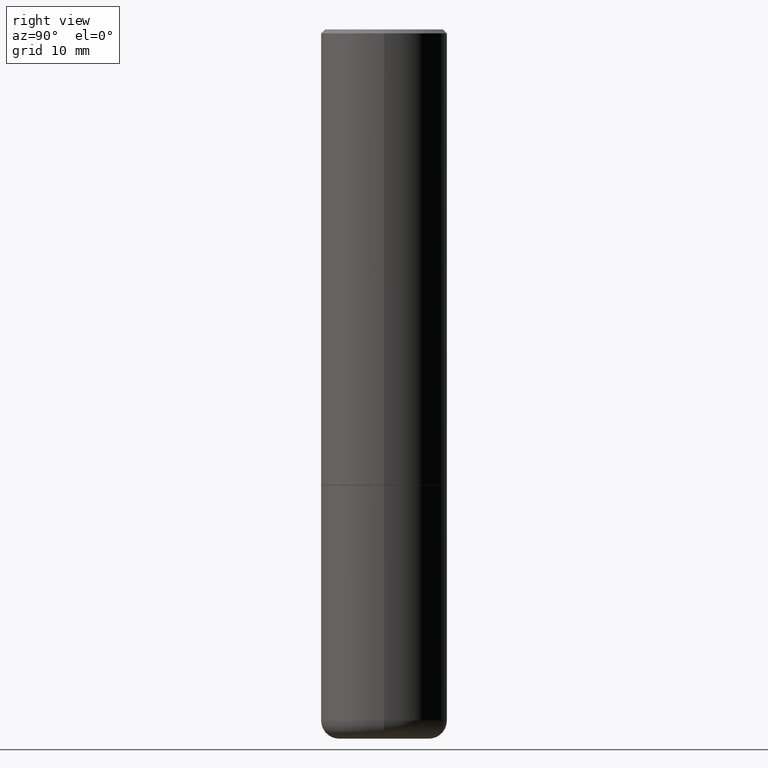
[diagram: clean part render]
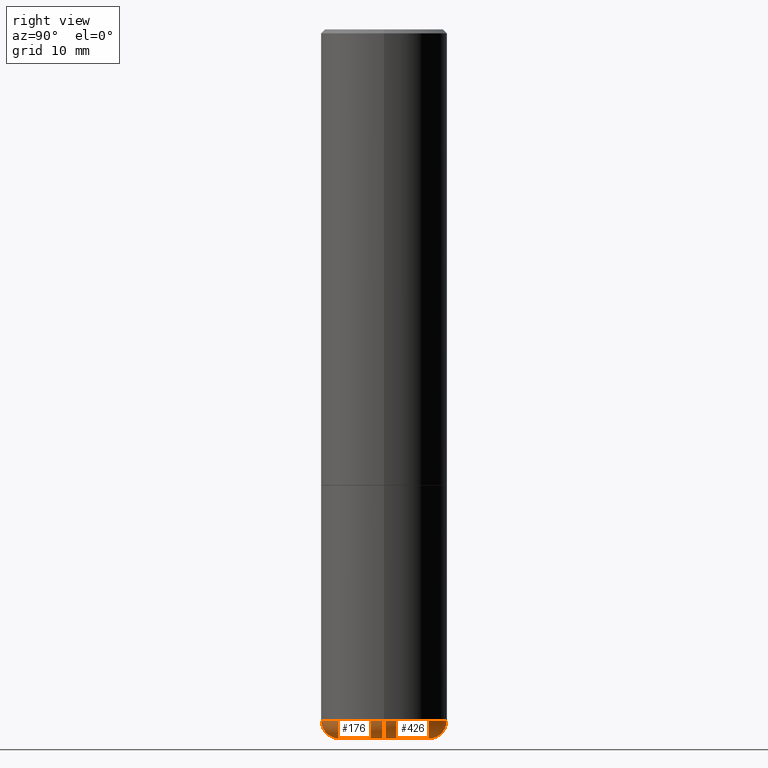
[diagram: same view with one multi-face feature highlighted, each face labeled with its STEP entity id]
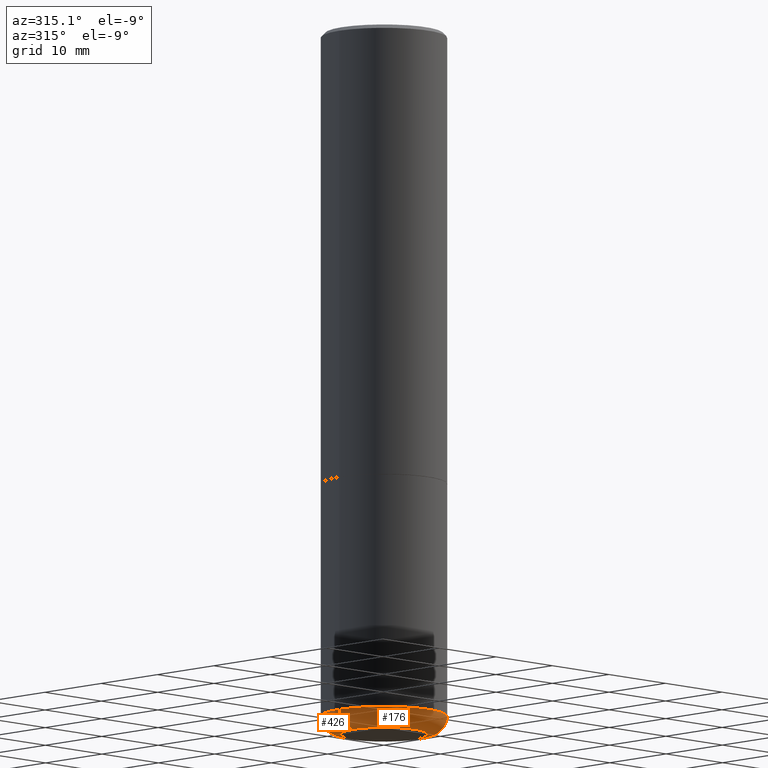
[diagram: same view with one multi-face feature highlighted, each face labeled with its STEP entity id]
A machine part, right view. The highlighted faces form ONE feature: a constant-radius fillet chain: 2 tangent blend faces with common blend radius 2.286 mm. The faces share edges in the B-rep.
A second angle (auxiliary view) of the same feature is appended — it is thin or edge-on in the first view.
Their STEP definitions:
[1] entity #176 (Torus):
#6 = CIRCLE ( 'NONE', #253, 0.3125000000000002776 ) ;
#12 = VERTEX_POINT ( 'NONE', #175 ) ;
#13 = ORIENTED_EDGE ( 'NONE', *, *, #340, .T. ) ;
#15 = EDGE_CURVE ( 'NONE', #411, #12, #291, .T. ) ;
#67 = ORIENTED_EDGE ( 'NONE', *, *, #84, .F. ) ;
#69 = DIRECTION ( 'NONE',  ( 1.000000000000000000, -6.982962677686269077E-15, 4.883557194083113462E-29 ) ) ;
#80 = CARTESIAN_POINT ( 'NONE',  ( 8.339350257792001869E-29, -1.190638201129981839E-14, -3.410123341872087543 ) ) ;
#82 = VERTEX_POINT ( 'NONE', #381 ) ;
#84 = EDGE_CURVE ( 'NONE', #12, #82, #6, .T. ) ;
#96 = FACE_OUTER_BOUND ( 'NONE', #373, .T. ) ;
#110 = ORIENTED_EDGE ( 'NONE', *, *, #289, .T. ) ;
#146 = CARTESIAN_POINT ( 'NONE',  ( -0.2177897639381356776, -1.017931565055450838E-14, -3.500000000000000000 ) ) ;
#159 = DIRECTION ( 'NONE',  ( -2.445468806185136597E-29, 3.491481338843145583E-15, 1.000000000000000000 ) ) ;
#160 = DIRECTION ( 'NONE',  ( -2.445468806185136597E-29, 3.491481338843145583E-15, 1.000000000000000000 ) ) ;
#175 = CARTESIAN_POINT ( 'NONE',  ( -0.3125000000000002776, -7.660661462598130604E-15, -3.410123341872087543 ) ) ;
#176 = ADVANCED_FACE ( 'NONE', ( #96 ), #384, .T. ) ;
#191 = CIRCLE ( 'NONE', #369, 0.09000000000000027423 ) ;
#203 = DIRECTION ( 'NONE',  ( 1.000000000000000000, -6.982962677686269077E-15, 0.000000000000000000 ) ) ;
#210 = DIRECTION ( 'NONE',  ( -1.000000000000000000, 7.105427357600990815E-15, 0.000000000000000000 ) ) ;
#217 = DIRECTION ( 'NONE',  ( -6.982962677686266711E-15, -1.000000000000000000, 3.491481338843145583E-15 ) ) ;
#231 = AXIS2_PLACEMENT_3D ( 'NONE', #425, #353, #210 ) ;
#234 = DIRECTION ( 'NONE',  ( 1.000000000000000000, -6.982962677686266711E-15, 0.000000000000000000 ) ) ;
#237 = CARTESIAN_POINT ( 'NONE',  ( 8.339350257792001869E-29, -1.190638201129981839E-14, -3.410123341872087543 ) ) ;
#253 = AXIS2_PLACEMENT_3D ( 'NONE', #80, #160, #203 ) ;
#254 = CIRCLE ( 'NONE', #324, 0.2177897639381356776 ) ;
#262 = AXIS2_PLACEMENT_3D ( 'NONE', #237, #159, #69 ) ;
#289 = EDGE_CURVE ( 'NONE', #330, #82, #191, .T. ) ;
#291 = CIRCLE ( 'NONE', #231, 0.09000000000000027423 ) ;
#324 = AXIS2_PLACEMENT_3D ( 'NONE', #402, #409, #234 ) ;
#330 = VERTEX_POINT ( 'NONE', #440 ) ;
#340 = EDGE_CURVE ( 'NONE', #411, #330, #254, .T. ) ;
#353 = DIRECTION ( 'NONE',  ( 7.105427357601001859E-15, 1.000000000000000000, -3.491481338843145583E-15 ) ) ;
#361 = DIRECTION ( 'NONE',  ( 1.000000000000000000, -6.982962677686268288E-15, 0.000000000000000000 ) ) ;
#369 = AXIS2_PLACEMENT_3D ( 'NONE', #398, #217, #361 ) ;
#373 = EDGE_LOOP ( 'NONE', ( #383, #13, #110, #67 ) ) ;
#381 = CARTESIAN_POINT ( 'NONE',  ( 0.3125000000000002776, -1.408855784807677831E-14, -3.410123341872087543 ) ) ;
#383 = ORIENTED_EDGE ( 'NONE', *, *, #15, .F. ) ;
#384 = TOROIDAL_SURFACE ( 'NONE', #262, 0.2225000000000000033, 0.09000000000000024647 ) ;
#398 = CARTESIAN_POINT ( 'NONE',  ( 0.2225000000000000033, -1.346009120708501336E-14, -3.410123341872087543 ) ) ;
#402 = CARTESIAN_POINT ( 'NONE',  ( 8.559140821647976968E-29, -1.222018468595100934E-14, -3.500000000000000000 ) ) ;
#409 = DIRECTION ( 'NONE',  ( -2.445468806185136597E-29, 3.491481338843145583E-15, 1.000000000000000000 ) ) ;
#411 = VERTEX_POINT ( 'NONE', #146 ) ;
#425 = CARTESIAN_POINT ( 'NONE',  ( -0.2225000000000000033, -1.032542442423359446E-14, -3.410123341872087543 ) ) ;
#440 = CARTESIAN_POINT ( 'NONE',  ( 0.2177897639381356776, -1.374100247911311305E-14, -3.500000000000000000 ) ) ;
[2] entity #426 (Torus):
#12 = VERTEX_POINT ( 'NONE', #175 ) ;
#15 = EDGE_CURVE ( 'NONE', #411, #12, #291, .T. ) ;
#38 = ORIENTED_EDGE ( 'NONE', *, *, #289, .F. ) ;
#49 = DIRECTION ( 'NONE',  ( -2.445468806185136597E-29, 3.491481338843145583E-15, 1.000000000000000000 ) ) ;
#71 = CIRCLE ( 'NONE', #243, 0.3125000000000002776 ) ;
#72 = TOROIDAL_SURFACE ( 'NONE', #343, 0.2225000000000000033, 0.09000000000000024647 ) ;
#74 = CARTESIAN_POINT ( 'NONE',  ( 8.559140821647976968E-29, -1.222018468595100934E-14, -3.500000000000000000 ) ) ;
#78 = CIRCLE ( 'NONE', #380, 0.2177897639381356776 ) ;
#82 = VERTEX_POINT ( 'NONE', #381 ) ;
#91 = DIRECTION ( 'NONE',  ( -2.445468806185136597E-29, 3.491481338843145583E-15, 1.000000000000000000 ) ) ;
#128 = EDGE_LOOP ( 'NONE', ( #406, #392, #377, #38 ) ) ;
#144 = EDGE_CURVE ( 'NONE', #82, #12, #71, .T. ) ;
#146 = CARTESIAN_POINT ( 'NONE',  ( -0.2177897639381356776, -1.017931565055450838E-14, -3.500000000000000000 ) ) ;
#161 = DIRECTION ( 'NONE',  ( 1.000000000000000000, -6.982962677686266711E-15, 0.000000000000000000 ) ) ;
#175 = CARTESIAN_POINT ( 'NONE',  ( -0.3125000000000002776, -7.660661462598130604E-15, -3.410123341872087543 ) ) ;
#181 = CARTESIAN_POINT ( 'NONE',  ( 8.339350257792001869E-29, -1.190638201129981839E-14, -3.410123341872087543 ) ) ;
#191 = CIRCLE ( 'NONE', #369, 0.09000000000000027423 ) ;
#196 = DIRECTION ( 'NONE',  ( -2.445468806185136597E-29, 3.491481338843145583E-15, 1.000000000000000000 ) ) ;
#210 = DIRECTION ( 'NONE',  ( -1.000000000000000000, 7.105427357600990815E-15, 0.000000000000000000 ) ) ;
#217 = DIRECTION ( 'NONE',  ( -6.982962677686266711E-15, -1.000000000000000000, 3.491481338843145583E-15 ) ) ;
#222 = DIRECTION ( 'NONE',  ( 1.000000000000000000, -6.982962677686269077E-15, 4.883557194083113462E-29 ) ) ;
#231 = AXIS2_PLACEMENT_3D ( 'NONE', #425, #353, #210 ) ;
#243 = AXIS2_PLACEMENT_3D ( 'NONE', #349, #49, #408 ) ;
#289 = EDGE_CURVE ( 'NONE', #330, #82, #191, .T. ) ;
#291 = CIRCLE ( 'NONE', #231, 0.09000000000000027423 ) ;
#330 = VERTEX_POINT ( 'NONE', #440 ) ;
#343 = AXIS2_PLACEMENT_3D ( 'NONE', #181, #91, #222 ) ;
#346 = EDGE_CURVE ( 'NONE', #330, #411, #78, .T. ) ;
#349 = CARTESIAN_POINT ( 'NONE',  ( 8.339350257792001869E-29, -1.190638201129981839E-14, -3.410123341872087543 ) ) ;
#353 = DIRECTION ( 'NONE',  ( 7.105427357601001859E-15, 1.000000000000000000, -3.491481338843145583E-15 ) ) ;
#361 = DIRECTION ( 'NONE',  ( 1.000000000000000000, -6.982962677686268288E-15, 0.000000000000000000 ) ) ;
#369 = AXIS2_PLACEMENT_3D ( 'NONE', #398, #217, #361 ) ;
#377 = ORIENTED_EDGE ( 'NONE', *, *, #144, .F. ) ;
#380 = AXIS2_PLACEMENT_3D ( 'NONE', #74, #196, #161 ) ;
#381 = CARTESIAN_POINT ( 'NONE',  ( 0.3125000000000002776, -1.408855784807677831E-14, -3.410123341872087543 ) ) ;
#392 = ORIENTED_EDGE ( 'NONE', *, *, #15, .T. ) ;
#398 = CARTESIAN_POINT ( 'NONE',  ( 0.2225000000000000033, -1.346009120708501336E-14, -3.410123341872087543 ) ) ;
#406 = ORIENTED_EDGE ( 'NONE', *, *, #346, .T. ) ;
#408 = DIRECTION ( 'NONE',  ( 1.000000000000000000, -6.982962677686269077E-15, 0.000000000000000000 ) ) ;
#411 = VERTEX_POINT ( 'NONE', #146 ) ;
#425 = CARTESIAN_POINT ( 'NONE',  ( -0.2225000000000000033, -1.032542442423359446E-14, -3.410123341872087543 ) ) ;
#426 = ADVANCED_FACE ( 'NONE', ( #435 ), #72, .T. ) ;
#435 = FACE_OUTER_BOUND ( 'NONE', #128, .T. ) ;
#440 = CARTESIAN_POINT ( 'NONE',  ( 0.2177897639381356776, -1.374100247911311305E-14, -3.500000000000000000 ) ) ;